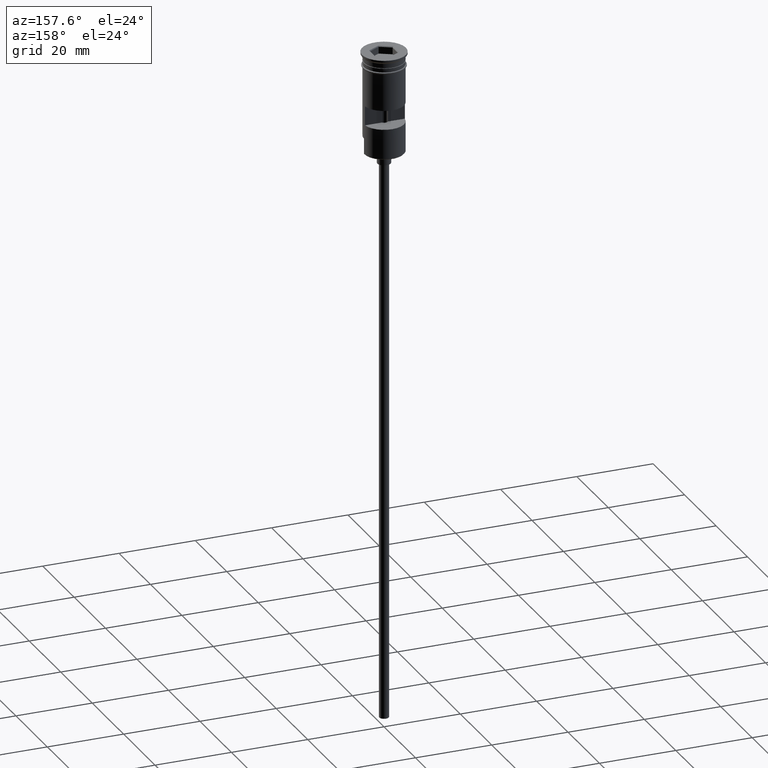
[diagram: clean part render]
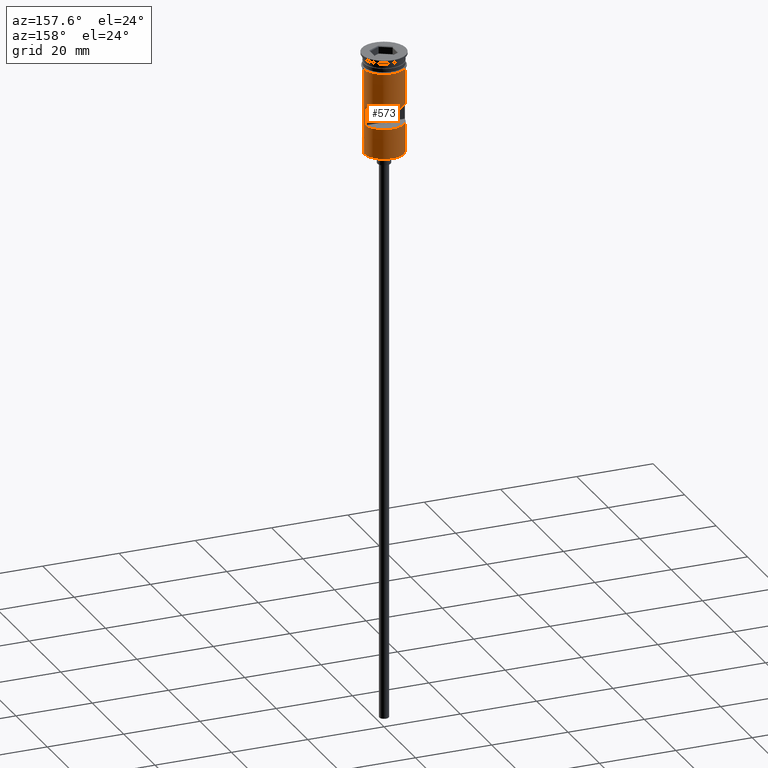
[diagram: same view with one face highlighted and labeled with its STEP entity id]
A machine part, auxiliary view. The second image highlights one B-rep face of the part: STEP entity #573.
In plain terms, the highlighted cylindrical surface (edge-blend (fillet) strip) has radius 5.25 mm, axis along (-0, -0, 1).
Its self-contained STEP definition (entity closure, byte-faithful):
#5 = CARTESIAN_POINT ( 'NONE',  ( -5.215601595214110375, 0.5999999999999998668, 0.000000000000000000 ) ) ;
#11 = VERTEX_POINT ( 'NONE', #523 ) ;
#14 = DIRECTION ( 'NONE',  ( -0.000000000000000000, -0.000000000000000000, 1.000000000000000000 ) ) ;
#27 = FACE_BOUND ( 'NONE', #878, .T. ) ;
#35 = VERTEX_POINT ( 'NONE', #1344 ) ;
#46 = CIRCLE ( 'NONE', #101, 5.249999999999999112 ) ;
#89 = VERTEX_POINT ( 'NONE', #1080 ) ;
#101 = AXIS2_PLACEMENT_3D ( 'NONE', #380, #1602, #1347 ) ;
#113 = ORIENTED_EDGE ( 'NONE', *, *, #1504, .F. ) ;
#124 = ORIENTED_EDGE ( 'NONE', *, *, #502, .F. ) ;
#127 = CARTESIAN_POINT ( 'NONE',  ( 5.249999999999996447, 6.429395695523600208E-16, -22.29999999999998295 ) ) ;
#134 = AXIS2_PLACEMENT_3D ( 'NONE', #220, #458, #470 ) ;
#151 = DIRECTION ( 'NONE',  ( 0.000000000000000000, -1.000000000000000000, 3.304235192336777484E-16 ) ) ;
#159 = VECTOR ( 'NONE', #1351, 1000.000000000000000 ) ;
#220 = CARTESIAN_POINT ( 'NONE',  ( 0.000000000000000000, 0.000000000000000000, -26.30000000000000071 ) ) ;
#227 = ORIENTED_EDGE ( 'NONE', *, *, #815, .T. ) ;
#231 = CARTESIAN_POINT ( 'NONE',  ( 0.000000000000000000, 0.000000000000000000, -13.49999999999999822 ) ) ;
#236 = CIRCLE ( 'NONE', #1188, 5.249999999999996447 ) ;
#246 = EDGE_CURVE ( 'NONE', #1378, #752, #443, .T. ) ;
#276 = DIRECTION ( 'NONE',  ( -0.000000000000000000, -0.000000000000000000, 1.000000000000000000 ) ) ;
#324 = CARTESIAN_POINT ( 'NONE',  ( 5.215601595214109487, 0.5999999999999998668, -18.50000000000000355 ) ) ;
#338 = LINE ( 'NONE', #824, #1370 ) ;
#377 = VERTEX_POINT ( 'NONE', #563 ) ;
#380 = CARTESIAN_POINT ( 'NONE',  ( 0.000000000000000000, 0.000000000000000000, -3.799999999999998934 ) ) ;
#384 = CARTESIAN_POINT ( 'NONE',  ( -5.249999999999994671, 0.000000000000000000, -26.50000000000000000 ) ) ;
#388 = DIRECTION ( 'NONE',  ( 0.000000000000000000, 0.000000000000000000, 1.000000000000000000 ) ) ;
#400 = CIRCLE ( 'NONE', #134, 5.249999999999996447 ) ;
#412 = ORIENTED_EDGE ( 'NONE', *, *, #960, .F. ) ;
#427 = VECTOR ( 'NONE', #14, 1000.000000000000000 ) ;
#443 = LINE ( 'NONE', #693, #904 ) ;
#458 = DIRECTION ( 'NONE',  ( 0.000000000000000000, 0.000000000000000000, 1.000000000000000000 ) ) ;
#461 = DIRECTION ( 'NONE',  ( -0.000000000000000000, -0.000000000000000000, 1.000000000000000000 ) ) ;
#470 = DIRECTION ( 'NONE',  ( -1.000000000000000000, 0.000000000000000000, 0.000000000000000000 ) ) ;
#502 = EDGE_CURVE ( 'NONE', #1491, #624, #338, .T. ) ;
#515 = CARTESIAN_POINT ( 'NONE',  ( 5.215601595214109487, 0.5999999999999998668, -13.49999999999999822 ) ) ;
#523 = CARTESIAN_POINT ( 'NONE',  ( 5.249999999999994671, 6.429395695523597250E-16, -26.30000000000000071 ) ) ;
#537 = CARTESIAN_POINT ( 'NONE',  ( 5.249999999999999112, 0.000000000000000000, -3.799999999999998934 ) ) ;
#550 = EDGE_CURVE ( 'NONE', #746, #1378, #236, .T. ) ;
#563 = CARTESIAN_POINT ( 'NONE',  ( -5.215601595214110375, 0.5999999999999998668, -18.50000000000000355 ) ) ;
#573 = ADVANCED_FACE ( 'NONE', ( #27, #888 ), #1359, .T. ) ;
#606 = EDGE_LOOP ( 'NONE', ( #1483, #1171, #1253, #124, #1470, #227 ) ) ;
#608 = DIRECTION ( 'NONE',  ( -0.000000000000000000, -3.730588120380232914E-16, -1.000000000000000000 ) ) ;
#624 = VERTEX_POINT ( 'NONE', #537 ) ;
#625 = DIRECTION ( 'NONE',  ( 1.000000000000000000, 0.000000000000000000, 0.000000000000000000 ) ) ;
#640 = EDGE_CURVE ( 'NONE', #35, #89, #654, .T. ) ;
#654 = LINE ( 'NONE', #384, #427 ) ;
#658 = CIRCLE ( 'NONE', #705, 5.249999999999996447 ) ;
#668 = EDGE_CURVE ( 'NONE', #89, #890, #860, .T. ) ;
#693 = CARTESIAN_POINT ( 'NONE',  ( 5.215601595214110375, 0.5999999999999998668, 0.000000000000000000 ) ) ;
#699 = CARTESIAN_POINT ( 'NONE',  ( -5.249999999999999112, 6.429395695523603167E-16, -3.799999999999998934 ) ) ;
#705 = AXIS2_PLACEMENT_3D ( 'NONE', #1579, #388, #965 ) ;
#745 = CARTESIAN_POINT ( 'NONE',  ( -5.249999999999996447, 6.429395695523600208E-16, 0.000000000000000000 ) ) ;
#746 = VERTEX_POINT ( 'NONE', #917 ) ;
#752 = VERTEX_POINT ( 'NONE', #324 ) ;
#802 = EDGE_CURVE ( 'NONE', #11, #1491, #1404, .T. ) ;
#804 = CARTESIAN_POINT ( 'NONE',  ( 5.249999999999994671, 6.429395695523597250E-16, -26.50000000000000000 ) ) ;
#815 = EDGE_CURVE ( 'NONE', #11, #35, #400, .T. ) ;
#824 = CARTESIAN_POINT ( 'NONE',  ( 5.249999999999996447, 0.000000000000000000, 0.000000000000000000 ) ) ;
#860 = LINE ( 'NONE', #745, #159 ) ;
#866 = DIRECTION ( 'NONE',  ( -0.000000000000000000, -0.000000000000000000, 1.000000000000000000 ) ) ;
#878 = EDGE_LOOP ( 'NONE', ( #1231, #1121, #412, #113 ) ) ;
#888 = FACE_OUTER_BOUND ( 'NONE', #606, .T. ) ;
#890 = VERTEX_POINT ( 'NONE', #699 ) ;
#904 = VECTOR ( 'NONE', #1488, 1000.000000000000000 ) ;
#917 = CARTESIAN_POINT ( 'NONE',  ( -5.215601595214110375, 0.5999999999999998668, -13.49999999999999822 ) ) ;
#932 = AXIS2_PLACEMENT_3D ( 'NONE', #1505, #866, #625 ) ;
#960 = EDGE_CURVE ( 'NONE', #377, #746, #1581, .T. ) ;
#965 = DIRECTION ( 'NONE',  ( -1.000000000000000000, 0.000000000000000000, 0.000000000000000000 ) ) ;
#970 = DIRECTION ( 'NONE',  ( -0.000000000000000000, -0.000000000000000000, 1.000000000000000000 ) ) ;
#1056 = EDGE_CURVE ( 'NONE', #624, #890, #46, .T. ) ;
#1080 = CARTESIAN_POINT ( 'NONE',  ( -5.249999999999994671, 0.000000000000000000, -22.29999999999998295 ) ) ;
#1121 = ORIENTED_EDGE ( 'NONE', *, *, #550, .F. ) ;
#1171 = ORIENTED_EDGE ( 'NONE', *, *, #668, .T. ) ;
#1182 = VECTOR ( 'NONE', #461, 1000.000000000000000 ) ;
#1188 = AXIS2_PLACEMENT_3D ( 'NONE', #231, #608, #151 ) ;
#1231 = ORIENTED_EDGE ( 'NONE', *, *, #246, .F. ) ;
#1253 = ORIENTED_EDGE ( 'NONE', *, *, #1056, .F. ) ;
#1344 = CARTESIAN_POINT ( 'NONE',  ( -5.249999999999994671, 0.000000000000000000, -26.30000000000000071 ) ) ;
#1347 = DIRECTION ( 'NONE',  ( 1.000000000000000000, 0.000000000000000000, 0.000000000000000000 ) ) ;
#1351 = DIRECTION ( 'NONE',  ( -0.000000000000000000, -0.000000000000000000, 1.000000000000000000 ) ) ;
#1359 = CYLINDRICAL_SURFACE ( 'NONE', #932, 5.249999999999996447 ) ;
#1370 = VECTOR ( 'NONE', #970, 1000.000000000000000 ) ;
#1378 = VERTEX_POINT ( 'NONE', #515 ) ;
#1404 = LINE ( 'NONE', #804, #1182 ) ;
#1413 = VECTOR ( 'NONE', #276, 1000.000000000000000 ) ;
#1470 = ORIENTED_EDGE ( 'NONE', *, *, #802, .F. ) ;
#1483 = ORIENTED_EDGE ( 'NONE', *, *, #640, .T. ) ;
#1488 = DIRECTION ( 'NONE',  ( 0.000000000000000000, 0.000000000000000000, -1.000000000000000000 ) ) ;
#1491 = VERTEX_POINT ( 'NONE', #127 ) ;
#1504 = EDGE_CURVE ( 'NONE', #752, #377, #658, .T. ) ;
#1505 = CARTESIAN_POINT ( 'NONE',  ( 0.000000000000000000, 0.000000000000000000, 0.000000000000000000 ) ) ;
#1579 = CARTESIAN_POINT ( 'NONE',  ( 0.000000000000000000, 0.000000000000000000, -18.50000000000000355 ) ) ;
#1581 = LINE ( 'NONE', #5, #1413 ) ;
#1602 = DIRECTION ( 'NONE',  ( -0.000000000000000000, -0.000000000000000000, 1.000000000000000000 ) ) ;